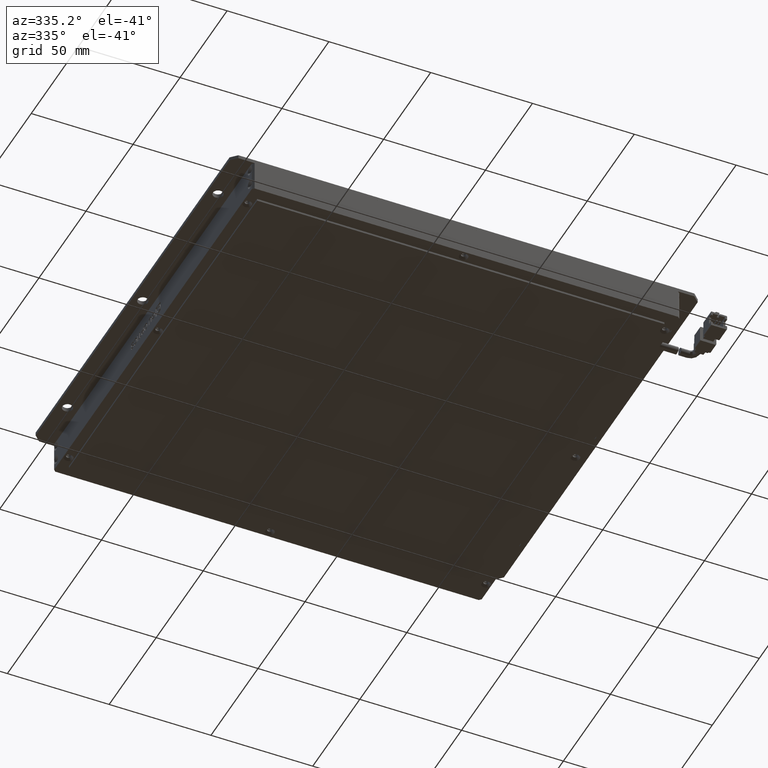
[diagram: clean part render]
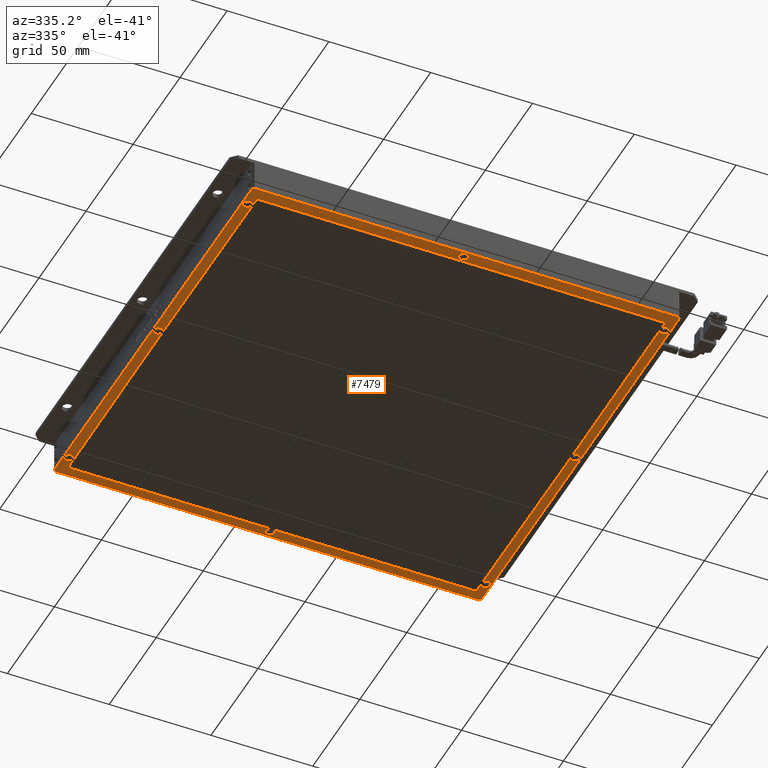
[diagram: same view with one face highlighted and labeled with its STEP entity id]
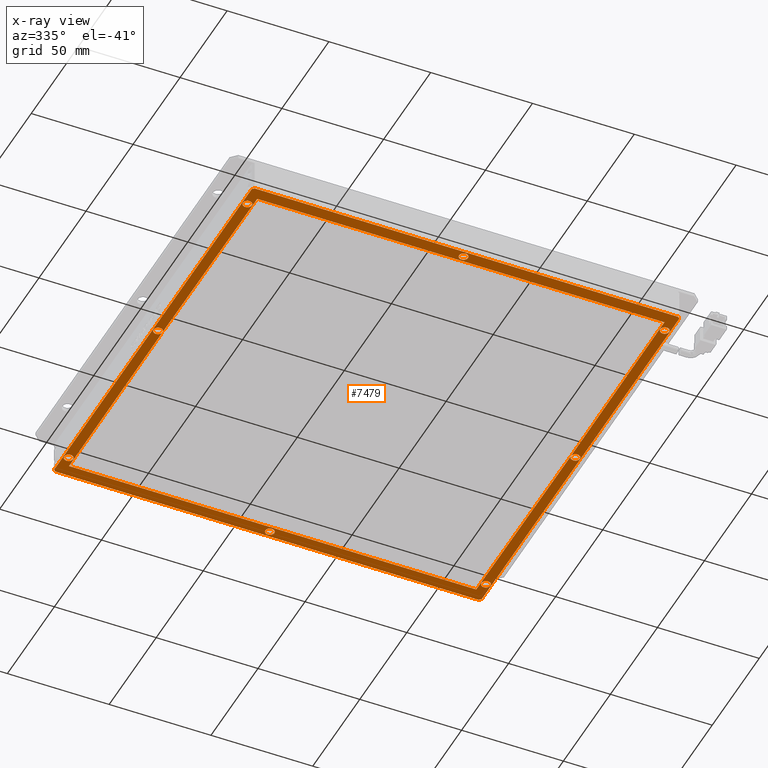
[diagram: x-ray of the same camera — body ghosted, the highlighted face saturated]
A machine part, auxiliary view. The second image highlights one B-rep face of the part: STEP entity #7479.
The next image is the same camera in x-ray: the body ghosted, the highlighted face saturated — about 0% of this face is hidden behind the body in this view.
In plain terms, the highlighted planar face has unit normal (0, 0, -1).
Its self-contained STEP definition (entity closure, byte-faithful):
#2 = DIRECTION ( 'NONE',  ( -0.0000000000000000000, -0.0000000000000000000, 1.000000000000000000 ) ) ;
#155 = CARTESIAN_POINT ( 'NONE',  ( -83.83424941752386400, 61.62124601721920000, -14.99999999997635100 ) ) ;
#173 = CARTESIAN_POINT ( 'NONE',  ( -81.33424941752386400, -133.3787539827808100, -15.00000000002364500 ) ) ;
#199 = DIRECTION ( 'NONE',  ( 0.002999986500133816800, 0.9999955000303746300, -0.0000000000000000000 ) ) ;
#327 = DIRECTION ( 'NONE',  ( 1.000000000000000000, 0.0000000000000000000, 0.0000000000000000000 ) ) ;
#337 = CARTESIAN_POINT ( 'NONE',  ( -86.33424941752386400, 71.62124601721920700, -15.00000000002364500 ) ) ;
#350 = AXIS2_PLACEMENT_3D ( 'NONE', #155, #2, #19183 ) ;
#440 = ORIENTED_EDGE ( 'NONE', *, *, #4327, .T. ) ;
#449 = DIRECTION ( 'NONE',  ( -0.0000000000000000000, -0.0000000000000000000, 1.000000000000000000 ) ) ;
#472 = VECTOR ( 'NONE', #14194, 1000.000000000000000 ) ;
#484 = CARTESIAN_POINT ( 'NONE',  ( 122.6657505824761200, -139.3787539827808400, -15.00000000002364500 ) ) ;
#546 = CIRCLE ( 'NONE', #6767, 2.199999999979801200 ) ;
#549 = ORIENTED_EDGE ( 'NONE', *, *, #2267, .T. ) ;
#618 = ORIENTED_EDGE ( 'NONE', *, *, #15355, .T. ) ;
#704 = DIRECTION ( 'NONE',  ( -1.000000000000000000, -5.551115123125782700E-016, 0.0000000000000000000 ) ) ;
#757 = CARTESIAN_POINT ( 'NONE',  ( -85.33424941752390700, -139.3787539827808100, -15.00000000002364500 ) ) ;
#801 = EDGE_LOOP ( 'NONE', ( #5860, #2085 ) ) ;
#902 = CARTESIAN_POINT ( 'NONE',  ( 118.9657505824963600, -128.3787539827808100, -15.00000000003319500 ) ) ;
#989 = PLANE ( 'NONE',  #16638 ) ;
#1002 = VERTEX_POINT ( 'NONE', #3723 ) ;
#1057 = VECTOR ( 'NONE', #199, 1000.000000000000100 ) ;
#1178 = DIRECTION ( 'NONE',  ( -0.0000000000000000000, -0.0000000000000000000, 1.000000000000000000 ) ) ;
#1220 = FACE_BOUND ( 'NONE', #17766, .T. ) ;
#1254 = ORIENTED_EDGE ( 'NONE', *, *, #1256, .F. ) ;
#1256 = EDGE_CURVE ( 'NONE', #6920, #8813, #12781, .T. ) ;
#1291 = LINE ( 'NONE', #757, #22229 ) ;
#1394 = CARTESIAN_POINT ( 'NONE',  ( 18.66575058247614600, -136.3787539827807800, -14.99999999997635100 ) ) ;
#1408 = EDGE_LOOP ( 'NONE', ( #5702, #618 ) ) ;
#1528 = DIRECTION ( 'NONE',  ( 1.000000000000000000, 0.0000000000000000000, 0.0000000000000000000 ) ) ;
#1599 = CARTESIAN_POINT ( 'NONE',  ( 121.1657505824761500, -33.37875398278074400, -15.00000000003319500 ) ) ;
#1670 = CARTESIAN_POINT ( 'NONE',  ( -86.33424941752385000, 72.62124601721919200, -15.00000000002364500 ) ) ;
#1671 = DIRECTION ( 'NONE',  ( -0.0000000000000000000, -0.0000000000000000000, 1.000000000000000000 ) ) ;
#2085 = ORIENTED_EDGE ( 'NONE', *, *, #7535, .T. ) ;
#2267 = EDGE_CURVE ( 'NONE', #9729, #12895, #15132, .T. ) ;
#2578 = DIRECTION ( 'NONE',  ( -1.000000000000000000, -0.0000000000000000000, -0.0000000000000000000 ) ) ;
#2714 = LINE ( 'NONE', #14136, #16334 ) ;
#2875 = DIRECTION ( 'NONE',  ( -0.0000000000000000000, -0.0000000000000000000, 1.000000000000000000 ) ) ;
#2991 = EDGE_CURVE ( 'NONE', #13398, #10343, #9102, .T. ) ;
#3123 = EDGE_CURVE ( 'NONE', #8716, #15661, #14226, .T. ) ;
#3129 = DIRECTION ( 'NONE',  ( -0.0000000000000000000, -0.0000000000000000000, 1.000000000000000000 ) ) ;
#3235 = AXIS2_PLACEMENT_3D ( 'NONE', #20039, #20114, #16784 ) ;
#3260 = CARTESIAN_POINT ( 'NONE',  ( 121.1657505824761500, 61.62124601721920000, -15.00000000003319500 ) ) ;
#3409 = VECTOR ( 'NONE', #7234, 999.9999999999998900 ) ;
#3594 = ORIENTED_EDGE ( 'NONE', *, *, #14729, .T. ) ;
#3689 = CARTESIAN_POINT ( 'NONE',  ( -85.33424941752386400, -139.3787539827808400, -15.00000000002364500 ) ) ;
#3695 = AXIS2_PLACEMENT_3D ( 'NONE', #9960, #1178, #20266 ) ;
#3723 = CARTESIAN_POINT ( 'NONE',  ( 20.86575058249233500, 69.62124601721919200, -14.99999999997635100 ) ) ;
#3731 = EDGE_CURVE ( 'NONE', #20623, #5280, #8194, .T. ) ;
#3740 = ORIENTED_EDGE ( 'NONE', *, *, #9387, .T. ) ;
#3799 = DIRECTION ( 'NONE',  ( 1.000000000000000000, 0.0000000000000000000, 0.0000000000000000000 ) ) ;
#3878 = CARTESIAN_POINT ( 'NONE',  ( 121.1657505824761500, -128.3787539827808100, -15.00000000003319500 ) ) ;
#3881 = VECTOR ( 'NONE', #16042, 1000.000000000000200 ) ;
#3900 = EDGE_CURVE ( 'NONE', #10343, #13398, #9256, .T. ) ;
#3916 = EDGE_LOOP ( 'NONE', ( #7756, #9581 ) ) ;
#3936 = ORIENTED_EDGE ( 'NONE', *, *, #10103, .T. ) ;
#4047 = CIRCLE ( 'NONE', #19983, 2.199999999979801200 ) ;
#4101 = CARTESIAN_POINT ( 'NONE',  ( -81.33424941752386400, -133.3787539827808100, -15.00000000002364500 ) ) ;
#4165 = EDGE_CURVE ( 'NONE', #10967, #15825, #6194, .T. ) ;
#4327 = EDGE_CURVE ( 'NONE', #5035, #10967, #1291, .T. ) ;
#4367 = CARTESIAN_POINT ( 'NONE',  ( 123.3657505824559600, -128.3787539827808100, -15.00000000003319500 ) ) ;
#4465 = FACE_BOUND ( 'NONE', #3916, .T. ) ;
#4482 = LINE ( 'NONE', #5688, #3409 ) ;
#4564 = VECTOR ( 'NONE', #7560, 1000.000000000000200 ) ;
#4631 = CARTESIAN_POINT ( 'NONE',  ( -83.83424941752386400, 61.62124601721920000, -14.99999999997635100 ) ) ;
#4673 = LINE ( 'NONE', #7787, #7443 ) ;
#4686 = CARTESIAN_POINT ( 'NONE',  ( -81.63424941752812500, -128.3787539827808100, -14.99999999997635100 ) ) ;
#4707 = DIRECTION ( 'NONE',  ( 1.000000000000000000, 0.0000000000000000000, 0.0000000000000000000 ) ) ;
#4716 = DIRECTION ( 'NONE',  ( -0.7071067811865622300, -0.7071067811865328100, 0.0000000000000000000 ) ) ;
#4719 = LINE ( 'NONE', #9092, #3881 ) ;
#4828 = VECTOR ( 'NONE', #4716, 1000.000000000000000 ) ;
#4871 = DIRECTION ( 'NONE',  ( 1.000000000000000000, 0.0000000000000000000, 0.0000000000000000000 ) ) ;
#4954 = CARTESIAN_POINT ( 'NONE',  ( 121.1657505824761500, -128.3787539827808100, -15.00000000003319500 ) ) ;
#4983 = CIRCLE ( 'NONE', #17427, 2.200000000016189000 ) ;
#5035 = VERTEX_POINT ( 'NONE', #3689 ) ;
#5086 = VERTEX_POINT ( 'NONE', #8763 ) ;
#5202 = CIRCLE ( 'NONE', #7133, 2.200000000016189000 ) ;
#5280 = VERTEX_POINT ( 'NONE', #6199 ) ;
#5464 = CIRCLE ( 'NONE', #9871, 2.200000000016189000 ) ;
#5513 = CARTESIAN_POINT ( 'NONE',  ( -81.63424941752812500, -33.37875398278074400, -15.00000000003319500 ) ) ;
#5547 = CARTESIAN_POINT ( 'NONE',  ( -83.83424941752386400, -128.3787539827808100, -14.99999999997635100 ) ) ;
#5688 = CARTESIAN_POINT ( 'NONE',  ( 122.6657505824761200, 72.62124601721920700, -15.00000000002364500 ) ) ;
#5702 = ORIENTED_EDGE ( 'NONE', *, *, #13900, .T. ) ;
#5853 = FACE_BOUND ( 'NONE', #12108, .T. ) ;
#5858 = VECTOR ( 'NONE', #9192, 1000.000000000000200 ) ;
#5860 = ORIENTED_EDGE ( 'NONE', *, *, #18161, .T. ) ;
#5964 = EDGE_CURVE ( 'NONE', #5086, #14287, #9801, .T. ) ;
#6003 = CARTESIAN_POINT ( 'NONE',  ( 123.3657505825128000, -33.37875398278074400, -15.00000000003319500 ) ) ;
#6154 = CARTESIAN_POINT ( 'NONE',  ( -81.63424941752812500, 61.62124601721920000, -14.99999999997635100 ) ) ;
#6194 = LINE ( 'NONE', #12467, #472 ) ;
#6199 = CARTESIAN_POINT ( 'NONE',  ( -81.33424941752386400, 66.62124601721917800, -15.00000000002364500 ) ) ;
#6200 = VERTEX_POINT ( 'NONE', #14016 ) ;
#6243 = EDGE_LOOP ( 'NONE', ( #21127, #3936, #15412, #12033, #1254, #7085, #18285, #22293, #9802, #9797 ) ) ;
#6288 = CARTESIAN_POINT ( 'NONE',  ( 121.1657505824761500, 61.62124601721920000, -15.00000000003319500 ) ) ;
#6349 = CARTESIAN_POINT ( 'NONE',  ( 118.6657505824761500, -133.3787539827806900, -15.00000000002364500 ) ) ;
#6388 = CARTESIAN_POINT ( 'NONE',  ( 18.66575058247614600, 69.62124601721919200, -14.99999999997635100 ) ) ;
#6501 = VECTOR ( 'NONE', #704, 1000.000000000000000 ) ;
#6659 = ORIENTED_EDGE ( 'NONE', *, *, #21630, .T. ) ;
#6696 = EDGE_CURVE ( 'NONE', #5280, #19381, #12217, .T. ) ;
#6767 = AXIS2_PLACEMENT_3D ( 'NONE', #6288, #7839, #21711 ) ;
#6920 = VERTEX_POINT ( 'NONE', #21852 ) ;
#7016 = DIRECTION ( 'NONE',  ( 1.000000000000000000, -0.0000000000000000000, -0.0000000000000000000 ) ) ;
#7085 = ORIENTED_EDGE ( 'NONE', *, *, #7813, .F. ) ;
#7133 = AXIS2_PLACEMENT_3D ( 'NONE', #8930, #21054, #9010 ) ;
#7234 = DIRECTION ( 'NONE',  ( 0.7071067811865574500, -0.7071067811865376900, 0.0000000000000000000 ) ) ;
#7269 = EDGE_CURVE ( 'NONE', #15547, #19051, #21392, .T. ) ;
#7329 = DIRECTION ( 'NONE',  ( -0.0000000000000000000, -0.0000000000000000000, 1.000000000000000000 ) ) ;
#7443 = VECTOR ( 'NONE', #2578, 1000.000000000000000 ) ;
#7479 = ADVANCED_FACE ( 'NONE', ( #13215, #14320, #13765, #8622, #5853, #19483, #1220, #4465 ), #989, .T. ) ;
#7535 = EDGE_CURVE ( 'NONE', #16643, #16144, #9679, .T. ) ;
#7560 = DIRECTION ( 'NONE',  ( -0.002999986500133812500, 0.9999955000303746300, 0.0000000000000000000 ) ) ;
#7756 = ORIENTED_EDGE ( 'NONE', *, *, #7768, .T. ) ;
#7768 = EDGE_CURVE ( 'NONE', #14287, #5086, #19441, .T. ) ;
#7787 = CARTESIAN_POINT ( 'NONE',  ( -86.33424941752385000, -139.3787539827808100, -15.00000000002364500 ) ) ;
#7797 = ORIENTED_EDGE ( 'NONE', *, *, #13454, .T. ) ;
#7813 = EDGE_CURVE ( 'NONE', #13398, #6920, #4719, .T. ) ;
#7839 = DIRECTION ( 'NONE',  ( -0.0000000000000000000, -0.0000000000000000000, 1.000000000000000000 ) ) ;
#8194 = LINE ( 'NONE', #19229, #1057 ) ;
#8267 = DIRECTION ( 'NONE',  ( 0.0000000000000000000, 0.0000000000000000000, -1.000000000000000000 ) ) ;
#8274 = CARTESIAN_POINT ( 'NONE',  ( 123.6657505824761500, -138.3787539827808400, -15.00000000002364500 ) ) ;
#8289 = CARTESIAN_POINT ( 'NONE',  ( 123.6657505824761400, 71.62124601721922100, -15.00000000002364500 ) ) ;
#8438 = DIRECTION ( 'NONE',  ( -0.0000000000000000000, -0.0000000000000000000, 1.000000000000000000 ) ) ;
#8573 = CARTESIAN_POINT ( 'NONE',  ( 123.6657505824761400, 72.62124601721919200, -15.00000000002364500 ) ) ;
#8622 = FACE_BOUND ( 'NONE', #10321, .T. ) ;
#8716 = VERTEX_POINT ( 'NONE', #15688 ) ;
#8763 = CARTESIAN_POINT ( 'NONE',  ( -86.03424941751959000, 61.62124601721920000, -14.99999999997635100 ) ) ;
#8813 = VERTEX_POINT ( 'NONE', #173 ) ;
#8930 = CARTESIAN_POINT ( 'NONE',  ( 18.66575058247614600, 69.62124601721919200, -14.99999999997635100 ) ) ;
#9010 = DIRECTION ( 'NONE',  ( 1.000000000000000000, 0.0000000000000000000, 0.0000000000000000000 ) ) ;
#9039 = EDGE_CURVE ( 'NONE', #19448, #22287, #9503, .T. ) ;
#9092 = CARTESIAN_POINT ( 'NONE',  ( 118.6657505824761500, -133.3787539827806900, -15.00000000002364500 ) ) ;
#9102 = CIRCLE ( 'NONE', #15205, 2.200000000036644600 ) ;
#9192 = DIRECTION ( 'NONE',  ( 0.002999986500133818500, -0.9999955000303746300, 0.0000000000000000000 ) ) ;
#9203 = EDGE_CURVE ( 'NONE', #20801, #19448, #14639, .T. ) ;
#9256 = CIRCLE ( 'NONE', #3695, 2.200000000036644600 ) ;
#9387 = EDGE_CURVE ( 'NONE', #12895, #9729, #14355, .T. ) ;
#9413 = VERTEX_POINT ( 'NONE', #14254 ) ;
#9503 = LINE ( 'NONE', #8274, #4828 ) ;
#9581 = ORIENTED_EDGE ( 'NONE', *, *, #5964, .T. ) ;
#9679 = CIRCLE ( 'NONE', #17818, 2.199999999979801200 ) ;
#9729 = VERTEX_POINT ( 'NONE', #4686 ) ;
#9789 = AXIS2_PLACEMENT_3D ( 'NONE', #15377, #22204, #4707 ) ;
#9797 = ORIENTED_EDGE ( 'NONE', *, *, #6696, .F. ) ;
#9801 = CIRCLE ( 'NONE', #18658, 2.199999999995733400 ) ;
#9802 = ORIENTED_EDGE ( 'NONE', *, *, #9876, .F. ) ;
#9871 = AXIS2_PLACEMENT_3D ( 'NONE', #6388, #18354, #13252 ) ;
#9876 = EDGE_CURVE ( 'NONE', #19381, #13398, #17852, .T. ) ;
#9960 = CARTESIAN_POINT ( 'NONE',  ( 121.1657505824761500, -33.37875398278074400, -15.00000000003319500 ) ) ;
#9966 = ORIENTED_EDGE ( 'NONE', *, *, #7269, .T. ) ;
#10088 = CARTESIAN_POINT ( 'NONE',  ( 118.9657505824395100, -33.37875398278068700, -15.00000000003319500 ) ) ;
#10097 = AXIS2_PLACEMENT_3D ( 'NONE', #3878, #16072, #327 ) ;
#10103 = EDGE_CURVE ( 'NONE', #20623, #15445, #13721, .T. ) ;
#10125 = ORIENTED_EDGE ( 'NONE', *, *, #3123, .T. ) ;
#10151 = DIRECTION ( 'NONE',  ( -0.0000000000000000000, -0.0000000000000000000, 1.000000000000000000 ) ) ;
#10321 = EDGE_LOOP ( 'NONE', ( #18026, #7797 ) ) ;
#10343 = VERTEX_POINT ( 'NONE', #6003 ) ;
#10967 = VERTEX_POINT ( 'NONE', #21477 ) ;
#11278 = EDGE_CURVE ( 'NONE', #19051, #15547, #4047, .T. ) ;
#11528 = CARTESIAN_POINT ( 'NONE',  ( 123.3657505824559600, 61.62124601721920000, -15.00000000003319500 ) ) ;
#11774 = VECTOR ( 'NONE', #7016, 1000.000000000000000 ) ;
#11894 = CARTESIAN_POINT ( 'NONE',  ( 118.6657505824761500, 66.62124601721919200, -15.00000000002364500 ) ) ;
#12033 = ORIENTED_EDGE ( 'NONE', *, *, #16609, .F. ) ;
#12108 = EDGE_LOOP ( 'NONE', ( #9966, #16027 ) ) ;
#12217 = LINE ( 'NONE', #21272, #20331 ) ;
#12467 = CARTESIAN_POINT ( 'NONE',  ( -86.33424941752385000, 72.62124601721919200, -15.00000000002364500 ) ) ;
#12524 = LINE ( 'NONE', #4101, #4564 ) ;
#12781 = LINE ( 'NONE', #6349, #6501 ) ;
#12895 = VERTEX_POINT ( 'NONE', #22243 ) ;
#12950 = ORIENTED_EDGE ( 'NONE', *, *, #4165, .T. ) ;
#13068 = AXIS2_PLACEMENT_3D ( 'NONE', #17678, #7329, #3799 ) ;
#13215 = FACE_BOUND ( 'NONE', #6243, .T. ) ;
#13252 = DIRECTION ( 'NONE',  ( 1.000000000000000000, 0.0000000000000000000, 0.0000000000000000000 ) ) ;
#13316 = EDGE_LOOP ( 'NONE', ( #12950, #3594, #10125, #6659, #16164, #16665, #20568, #440 ) ) ;
#13398 = VERTEX_POINT ( 'NONE', #10088 ) ;
#13454 = EDGE_CURVE ( 'NONE', #21882, #6200, #4983, .T. ) ;
#13721 = CIRCLE ( 'NONE', #9789, 2.199999999995733400 ) ;
#13765 = FACE_BOUND ( 'NONE', #1408, .T. ) ;
#13900 = EDGE_CURVE ( 'NONE', #1002, #9413, #5464, .T. ) ;
#14016 = CARTESIAN_POINT ( 'NONE',  ( 20.86575058249233500, -136.3787539827807800, -14.99999999997635100 ) ) ;
#14136 = CARTESIAN_POINT ( 'NONE',  ( -86.33424941752387800, 71.62124601721920700, -15.00000000002364500 ) ) ;
#14194 = DIRECTION ( 'NONE',  ( -0.0000000000000000000, 1.000000000000000000, -0.0000000000000000000 ) ) ;
#14226 = LINE ( 'NONE', #1670, #11774 ) ;
#14254 = CARTESIAN_POINT ( 'NONE',  ( 16.46575058245995700, 69.62124601721919200, -14.99999999997635100 ) ) ;
#14287 = VERTEX_POINT ( 'NONE', #6154 ) ;
#14320 = FACE_OUTER_BOUND ( 'NONE', #13316, .T. ) ;
#14355 = CIRCLE ( 'NONE', #19361, 2.199999999995733400 ) ;
#14373 = DIRECTION ( 'NONE',  ( 1.000000000000000000, 6.938893903907228400E-017, -0.0000000000000000000 ) ) ;
#14390 = DIRECTION ( 'NONE',  ( 1.000000000000000000, 0.0000000000000000000, 0.0000000000000000000 ) ) ;
#14639 = LINE ( 'NONE', #8573, #16268 ) ;
#14729 = EDGE_CURVE ( 'NONE', #15825, #8716, #2714, .T. ) ;
#14963 = CARTESIAN_POINT ( 'NONE',  ( 122.6657505824761400, 72.62124601721917800, -15.00000000002364500 ) ) ;
#15132 = CIRCLE ( 'NONE', #3235, 2.199999999995733400 ) ;
#15205 = AXIS2_PLACEMENT_3D ( 'NONE', #1599, #10151, #1528 ) ;
#15211 = CARTESIAN_POINT ( 'NONE',  ( 18.66575058247614600, -136.3787539827807800, -14.99999999997635100 ) ) ;
#15355 = EDGE_CURVE ( 'NONE', #9413, #1002, #5202, .T. ) ;
#15377 = CARTESIAN_POINT ( 'NONE',  ( -83.83424941752386400, -33.37875398278074400, -15.00000000003319500 ) ) ;
#15412 = ORIENTED_EDGE ( 'NONE', *, *, #18996, .T. ) ;
#15445 = VERTEX_POINT ( 'NONE', #16198 ) ;
#15547 = VERTEX_POINT ( 'NONE', #4367 ) ;
#15661 = VERTEX_POINT ( 'NONE', #14963 ) ;
#15688 = CARTESIAN_POINT ( 'NONE',  ( -85.33424941752389300, 72.62124601721917800, -15.00000000002364500 ) ) ;
#15825 = VERTEX_POINT ( 'NONE', #337 ) ;
#16027 = ORIENTED_EDGE ( 'NONE', *, *, #11278, .T. ) ;
#16042 = DIRECTION ( 'NONE',  ( -0.002999986500133813800, -0.9999955000303746300, -0.0000000000000000000 ) ) ;
#16072 = DIRECTION ( 'NONE',  ( -0.0000000000000000000, -0.0000000000000000000, 1.000000000000000000 ) ) ;
#16144 = VERTEX_POINT ( 'NONE', #11528 ) ;
#16164 = ORIENTED_EDGE ( 'NONE', *, *, #9203, .T. ) ;
#16198 = CARTESIAN_POINT ( 'NONE',  ( -86.03424941751959000, -33.37875398278074400, -15.00000000003319500 ) ) ;
#16268 = VECTOR ( 'NONE', #17439, 1000.000000000000000 ) ;
#16334 = VECTOR ( 'NONE', #17555, 1000.000000000000100 ) ;
#16609 = EDGE_CURVE ( 'NONE', #8813, #20623, #12524, .T. ) ;
#16638 = AXIS2_PLACEMENT_3D ( 'NONE', #18368, #8267, #18586 ) ;
#16643 = VERTEX_POINT ( 'NONE', #19643 ) ;
#16665 = ORIENTED_EDGE ( 'NONE', *, *, #9039, .T. ) ;
#16784 = DIRECTION ( 'NONE',  ( 1.000000000000000000, 0.0000000000000000000, 0.0000000000000000000 ) ) ;
#16831 = DIRECTION ( 'NONE',  ( 1.000000000000000000, 0.0000000000000000000, 0.0000000000000000000 ) ) ;
#17427 = AXIS2_PLACEMENT_3D ( 'NONE', #1394, #3129, #4871 ) ;
#17439 = DIRECTION ( 'NONE',  ( -0.0000000000000000000, -1.000000000000000000, 0.0000000000000000000 ) ) ;
#17494 = CARTESIAN_POINT ( 'NONE',  ( 123.6657505824761400, -138.3787539827808400, -15.00000000002364500 ) ) ;
#17555 = DIRECTION ( 'NONE',  ( 0.7071067811865376900, 0.7071067811865573400, 0.0000000000000000000 ) ) ;
#17678 = CARTESIAN_POINT ( 'NONE',  ( -83.83424941752386400, -33.37875398278074400, -15.00000000003319500 ) ) ;
#17766 = EDGE_LOOP ( 'NONE', ( #549, #3740 ) ) ;
#17818 = AXIS2_PLACEMENT_3D ( 'NONE', #3260, #1671, #22207 ) ;
#17852 = LINE ( 'NONE', #17986, #5858 ) ;
#17986 = CARTESIAN_POINT ( 'NONE',  ( 118.6657505824761500, 66.62124601721919200, -15.00000000002364500 ) ) ;
#18026 = ORIENTED_EDGE ( 'NONE', *, *, #19197, .T. ) ;
#18161 = EDGE_CURVE ( 'NONE', #16144, #16643, #546, .T. ) ;
#18285 = ORIENTED_EDGE ( 'NONE', *, *, #2991, .T. ) ;
#18354 = DIRECTION ( 'NONE',  ( -0.0000000000000000000, -0.0000000000000000000, 1.000000000000000000 ) ) ;
#18368 = CARTESIAN_POINT ( 'NONE',  ( 123.6657505824761400, 72.62124601721919200, -15.00000000002364500 ) ) ;
#18586 = DIRECTION ( 'NONE',  ( 1.000000000000000000, 0.0000000000000000000, 0.0000000000000000000 ) ) ;
#18612 = CIRCLE ( 'NONE', #13068, 2.199999999995733400 ) ;
#18658 = AXIS2_PLACEMENT_3D ( 'NONE', #4631, #21817, #16831 ) ;
#18996 = EDGE_CURVE ( 'NONE', #15445, #20623, #18612, .T. ) ;
#19051 = VERTEX_POINT ( 'NONE', #902 ) ;
#19096 = EDGE_CURVE ( 'NONE', #22287, #5035, #4673, .T. ) ;
#19183 = DIRECTION ( 'NONE',  ( 1.000000000000000000, 0.0000000000000000000, 0.0000000000000000000 ) ) ;
#19197 = EDGE_CURVE ( 'NONE', #6200, #21882, #19398, .T. ) ;
#19229 = CARTESIAN_POINT ( 'NONE',  ( -81.33424941752386400, 66.62124601721917800, -15.00000000002364500 ) ) ;
#19361 = AXIS2_PLACEMENT_3D ( 'NONE', #5547, #449, #14390 ) ;
#19381 = VERTEX_POINT ( 'NONE', #11894 ) ;
#19398 = CIRCLE ( 'NONE', #21934, 2.200000000016189000 ) ;
#19441 = CIRCLE ( 'NONE', #350, 2.199999999995733400 ) ;
#19448 = VERTEX_POINT ( 'NONE', #17494 ) ;
#19483 = FACE_BOUND ( 'NONE', #801, .T. ) ;
#19643 = CARTESIAN_POINT ( 'NONE',  ( 118.9657505824963600, 61.62124601721920000, -15.00000000003319500 ) ) ;
#19688 = CARTESIAN_POINT ( 'NONE',  ( 16.46575058245995700, -136.3787539827807800, -14.99999999997635100 ) ) ;
#19983 = AXIS2_PLACEMENT_3D ( 'NONE', #4954, #8438, #20554 ) ;
#20039 = CARTESIAN_POINT ( 'NONE',  ( -83.83424941752386400, -128.3787539827808100, -14.99999999997635100 ) ) ;
#20114 = DIRECTION ( 'NONE',  ( -0.0000000000000000000, -0.0000000000000000000, 1.000000000000000000 ) ) ;
#20266 = DIRECTION ( 'NONE',  ( 1.000000000000000000, 0.0000000000000000000, 0.0000000000000000000 ) ) ;
#20331 = VECTOR ( 'NONE', #14373, 1000.000000000000000 ) ;
#20444 = DIRECTION ( 'NONE',  ( 1.000000000000000000, 0.0000000000000000000, 0.0000000000000000000 ) ) ;
#20554 = DIRECTION ( 'NONE',  ( 1.000000000000000000, 0.0000000000000000000, 0.0000000000000000000 ) ) ;
#20568 = ORIENTED_EDGE ( 'NONE', *, *, #19096, .T. ) ;
#20623 = VERTEX_POINT ( 'NONE', #5513 ) ;
#20801 = VERTEX_POINT ( 'NONE', #8289 ) ;
#21054 = DIRECTION ( 'NONE',  ( -0.0000000000000000000, -0.0000000000000000000, 1.000000000000000000 ) ) ;
#21127 = ORIENTED_EDGE ( 'NONE', *, *, #3731, .F. ) ;
#21272 = CARTESIAN_POINT ( 'NONE',  ( 118.6657505824761500, 66.62124601721919200, -15.00000000002364500 ) ) ;
#21392 = CIRCLE ( 'NONE', #10097, 2.199999999979801200 ) ;
#21477 = CARTESIAN_POINT ( 'NONE',  ( -86.33424941752386400, -138.3787539827808400, -15.00000000002364500 ) ) ;
#21531 = DIRECTION ( 'NONE',  ( -0.7071067811865474600, 0.7071067811865474600, -0.0000000000000000000 ) ) ;
#21630 = EDGE_CURVE ( 'NONE', #15661, #20801, #4482, .T. ) ;
#21711 = DIRECTION ( 'NONE',  ( 1.000000000000000000, 0.0000000000000000000, 0.0000000000000000000 ) ) ;
#21817 = DIRECTION ( 'NONE',  ( -0.0000000000000000000, -0.0000000000000000000, 1.000000000000000000 ) ) ;
#21852 = CARTESIAN_POINT ( 'NONE',  ( 118.6657505824761500, -133.3787539827806900, -15.00000000002364500 ) ) ;
#21882 = VERTEX_POINT ( 'NONE', #19688 ) ;
#21934 = AXIS2_PLACEMENT_3D ( 'NONE', #15211, #2875, #20444 ) ;
#22204 = DIRECTION ( 'NONE',  ( -0.0000000000000000000, -0.0000000000000000000, 1.000000000000000000 ) ) ;
#22207 = DIRECTION ( 'NONE',  ( 1.000000000000000000, 0.0000000000000000000, 0.0000000000000000000 ) ) ;
#22229 = VECTOR ( 'NONE', #21531, 1000.000000000000100 ) ;
#22243 = CARTESIAN_POINT ( 'NONE',  ( -86.03424941751959000, -128.3787539827808100, -14.99999999997635100 ) ) ;
#22287 = VERTEX_POINT ( 'NONE', #484 ) ;
#22293 = ORIENTED_EDGE ( 'NONE', *, *, #3900, .T. ) ;